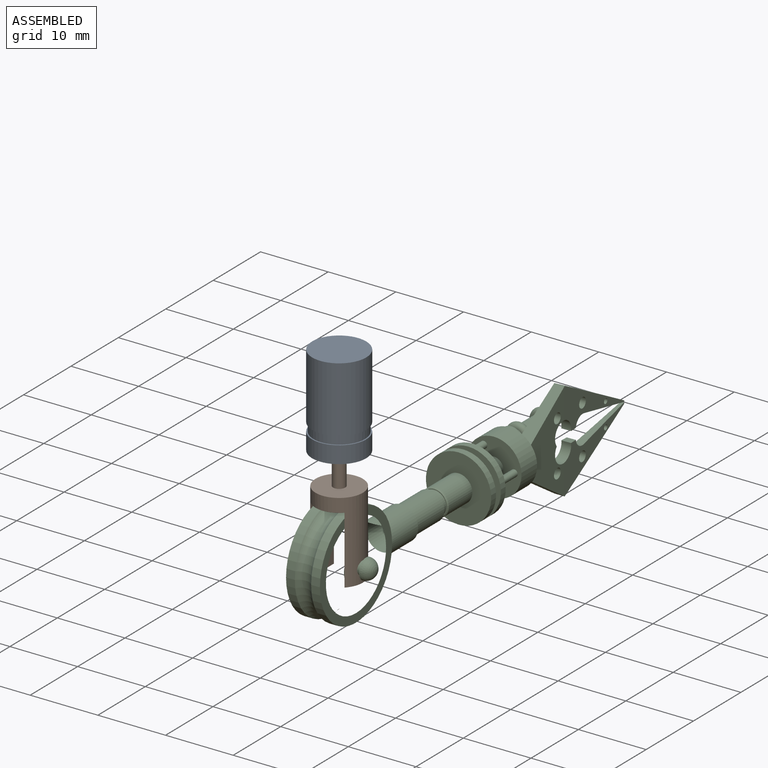
[diagram: assembled view]
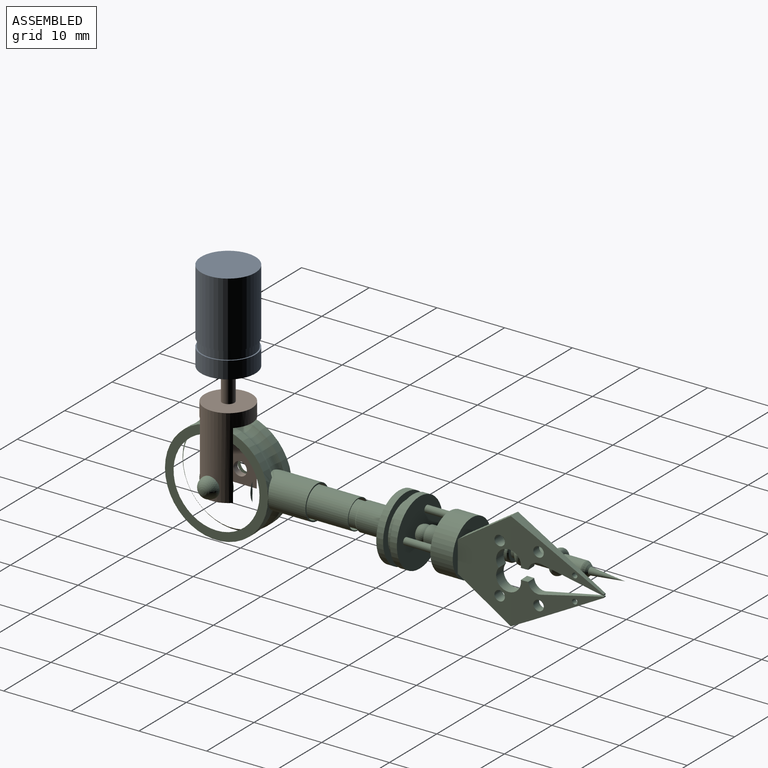
[diagram: assembled view, second angle]
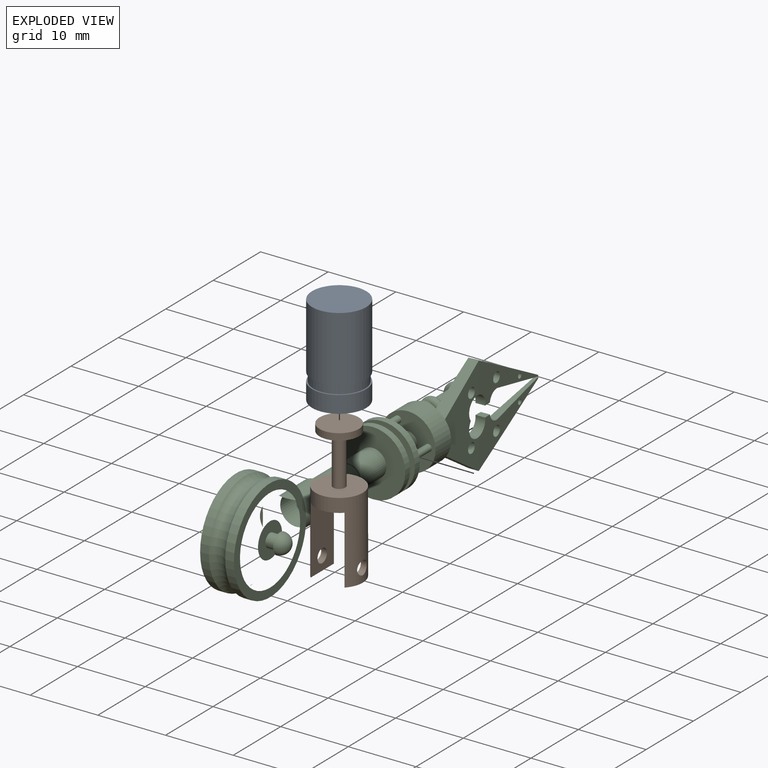
[diagram: exploded view]
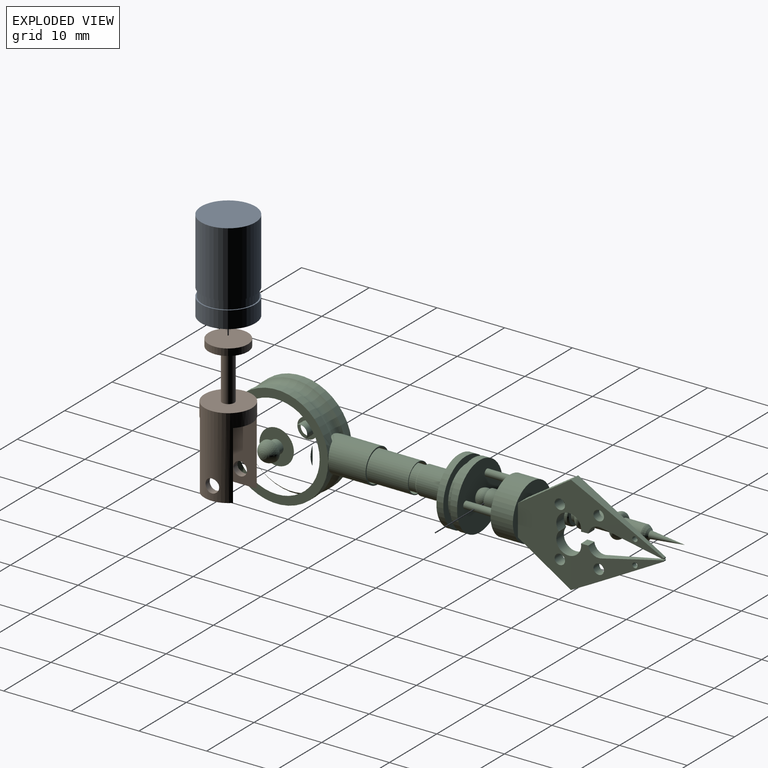
[diagram: exploded view, second angle]
ASSEMBLY  parts=3 mates=2
PART A: 11 faces, bbox 8x8x13.5 mm
  f0: plane 8x8mm, normal (0,0,1), area 50.3mm2, adj f1
  f1: cylinder r=4mm len=9.69mm, axis (0,0,1), area 243.4mm2, adj f0,f2
  f2: plane 8x8mm, normal (0,0,-1), area 4.6mm2, adj f1,f3
  f3: cylinder r=3.81mm len=7.62mm, axis (0,0,1), area 30.2mm2, adj f2,f4
  f4: plane 8x8mm, normal (0,0,1), area 4.6mm2, adj f3,f5
  f5: cylinder r=4mm len=8mm, axis (0,0,1), area 63.3mm2, adj f4,f6
  f6: plane 8x8mm, normal (0,0,-1), area 47.5mm2, adj f5,f7
  f7: cylinder r=0.94mm len=1.89mm, axis (0,0,1), area 5.9mm2, adj f6,f8
  f8: plane 6x6mm, normal (0,0,1), area 25.5mm2, adj f7,f9
  f9: cylinder r=3mm len=11.47mm, axis (0,0,1), area 216.1mm2, adj f8,f10
  f10: plane 6x6mm, normal (0,0,-1), area 28.3mm2, adj f9
PART B: 13 faces, bbox 7x7x20.4 mm
  f0: plane 4.9x1mm, normal (0,0,-1), area 3.4mm2, adj f5,f8
  f1: plane 5.8x5.8mm, normal (0,0,-1), area 23.9mm2, adj f2,f4
  f2: cylinder r=0.9mm len=7.37mm, axis (0,0,1), area 41.7mm2, adj f1,f7
  f3: plane 5.8x5.8mm, normal (0,0,1), area 26.4mm2, adj f4
  f4: cylinder r=2.9mm len=5.8mm, axis (0,0,1), area 18.2mm2, adj f1,f3
  f5: cylinder r=3.5mm len=12mm, axis (0,0,1), area 146.2mm2, adj f0,f6,f7,f8,f9,f10,f11,f12
  f6: plane 4.9x1mm, normal (0,0,-1), area 3.4mm2, adj f5,f9
  f7: plane 7x7mm, normal (0,0,1), area 35.9mm2, adj f2,f5
  f8: plane 10x4.9mm, normal (1,0,0), area 45.8mm2, adj f0,f5,f10,f12
  f9: plane 10x4.9mm, normal (-1,0,0), area 45.8mm2, adj f5,f6,f10,f11
  f10: plane 7x5mm, normal (0,0,-1), area 31.7mm2, adj f5,f8,f9
  f11: cylinder r=1mm len=2mm, axis (1,0,0), area 5.8mm2, adj f5,f9
  f12: cylinder r=1mm len=2mm, axis (1,0,0), area 5.8mm2, adj f5,f8
PART C: 92 faces, bbox 11x66.3x18.5 mm
  f0: plane 14.75x7.67mm, normal (-1,0.03,0), area 59.8mm2, adj f1,f2,f3,f4,f5,f6,f7,f8
  f1: cylinder r=0.75mm len=1.72mm, axis (1,0.03,0), area 7.7mm2, adj f0,f10
  f2: extruded ~3.63x2.85mm, area 10.9mm2, adj f0,f3,f8,f10,f11,f12
  f3: plane 13.36x7.36mm, normal (-1,0.04,0), area 31.6mm2, adj f0,f2,f11,f13,f14,f15,f16,f17
  f4: plane 7.67x5.09mm, normal (0,-0.55,-0.83), area 16.2mm2, adj f0,f5,f10,f20
  f5: plane 8.13x8.13mm, normal (0,1,0), area 38.6mm2, adj f0,f4,f6,f10,f21,f22
  f6: plane 7.67x5.09mm, normal (0,-0.55,0.83), area 16.2mm2, adj f0,f5,f10,f23
  f7: plane 13.36x7.36mm, normal (-1,0.04,0), area 31.6mm2, adj f0,f8,f24,f25,f26,f27,f28,f29
  f8: extruded ~3.63x2.85mm, area 10.9mm2, adj f0,f2,f7,f10,f30,f32
  f9: cylinder r=0.75mm len=1.72mm, axis (1,0.03,0), area 7.7mm2, adj f0,f10
  f10: plane 14.75x7.67mm, normal (1,0.03,0), area 60.1mm2, adj f1,f2,f4,f5,f6,f8,f9,f12
  f11: plane 1.41x1.11mm, normal (0,0,1), area 1.5mm2, adj f2,f3,f12,f17
  f12: plane 13.35x7.33mm, normal (1,0.04,0), area 31.7mm2, adj f2,f10,f11,f13,f14,f15,f16,f17
  f13: cylinder r=0.38mm len=0.84mm, axis (1,0.03,0), area 1.8mm2, adj f3,f12
  f14: cylinder r=0.75mm len=1.54mm, axis (1,0.03,0), area 5.7mm2, adj f3,f12
  f15: plane 0.45x0.17mm, normal (-0.03,1,0), area 0.1mm2, adj f3,f12,f16,f19
  f16: cylinder r=1465.67mm len=13.34mm, axis (1,0.03,0), area 12.3mm2, adj f3,f12,f15,f20
  f17: cylinder r=1.51mm len=1.86mm, axis (1,0.03,0), area 3.1mm2, adj f3,f11,f12,f18
  f18: plane 8.72x1.94mm, normal (0.01,-0.22,0.98), area 7.4mm2, adj f3,f12,f17,f19
  f19: plane 0.48x0.34mm, normal (0,-0.15,0.99), area 0.2mm2, adj f3,f12,f15,f18
  f20: plane 2.89x1.52mm, normal (0,0.46,-0.89), area 2.6mm2, adj f4,f12,f16
  f21: cylinder r=1.14mm len=2.29mm, axis (0,-1,0), area 4.6mm2, adj f5,f33
  f22: cylinder r=4.06mm len=8.13mm, axis (0,1,0), area 84.3mm2, adj f5,f34
  f23: plane 2.89x1.52mm, normal (0,0.46,0.89), area 2.6mm2, adj f6,f25,f32
  f24: cylinder r=0.38mm len=0.84mm, axis (1,0.03,0), area 1.8mm2, adj f7,f32
  f25: cylinder r=1465.67mm len=13.34mm, axis (1,0.03,0), area 12.3mm2, adj f7,f23,f26,f32
  f26: plane 0.45x0.17mm, normal (-0.03,1,0), area 0.1mm2, adj f7,f25,f27,f32
  f27: plane 0.48x0.34mm, normal (0,-0.15,-0.99), area 0.2mm2, adj f7,f26,f28,f32
  f28: plane 8.72x1.94mm, normal (0.01,-0.22,-0.98), area 7.4mm2, adj f7,f27,f29,f32
  f29: cylinder r=1.51mm len=1.86mm, axis (1,0.03,0), area 3.1mm2, adj f7,f28,f30,f32
  f30: plane 1.41x1.11mm, normal (0,0,-1), area 1.5mm2, adj f7,f8,f29,f32
  f31: cylinder r=0.75mm len=1.54mm, axis (1,0.03,0), area 5.7mm2, adj f7,f32
  f32: plane 13.34x7.32mm, normal (1,0.04,0), area 31.7mm2, adj f8,f10,f23,f24,f25,f26,f27,f28
  f33: torus R=1.14mm, axis (0,-1,0), area 19.4mm2, adj f21,f35
  f34: plane 8.13x8.13mm, normal (0,-1,0), area 43.3mm2, adj f22,f36,f37,f38,f39
  f35: cylinder r=1.14mm len=2.29mm, axis (0,-1,0), area 0.9mm2, adj f33,f40
  f36: cylinder r=0.51mm len=4.42mm, axis (0,1,0), area 14.1mm2, adj f34,f41
  f37: cylinder r=0.51mm len=4.42mm, axis (0,1,0), area 14.1mm2, adj f34,f41
  f38: cylinder r=0.51mm len=4.42mm, axis (0,1,0), area 14.1mm2, adj f34,f41
  f39: cylinder r=1.4mm len=2.92mm, axis (0,1,0), area 25.6mm2, adj f34,f42
  f40: plane 3.04x3.04mm, normal (0,-1,0), area 3.2mm2, adj f35,f43
  f41: plane 9.65x9.65mm, normal (0,1,0), area 67.6mm2, adj f36,f37,f38,f44,f45
  f42: plane 2.79x2.79mm, normal (0,-1,0), area 3mm2, adj f39,f44
  f43: torus R=1.52mm, axis (0,-1,0), area 4.2mm2, adj f40,f46
  f44: sphere r=1.25mm, area 11.8mm2, adj f41,f42
  f45: cylinder r=4.83mm len=9.65mm, axis (0,1,0), area 30.8mm2, adj f41,f47
  f46: cylinder r=1.78mm len=3.56mm, axis (0,-1,0), area 22.7mm2, adj f43,f48
  f47: plane 9.65x9.65mm, normal (0,-1,0), area 27.6mm2, adj f45,f49
  f48: torus R=1.52mm, axis (0,-1,0), area 4.2mm2, adj f46,f50
  f49: cylinder r=3.81mm len=7.62mm, axis (0,1,0), area 24.3mm2, adj f47,f51
  f50: plane 3.04x3.04mm, normal (0,1,0), area 3.2mm2, adj f48,f52
  f51: plane 9.65x9.65mm, normal (0,1,0), area 27.6mm2, adj f49,f53
  f52: cylinder r=1.14mm len=2.29mm, axis (0,-1,0), area 4.6mm2, adj f50,f54
  f53: cylinder r=4.83mm len=9.65mm, axis (0,1,0), area 30.8mm2, adj f51,f55
  f54: torus R=1.14mm, axis (0,-1,0), area 19.4mm2, adj f52,f56
  f55: plane 9.65x9.65mm, normal (0,-1,0), area 60.2mm2, adj f53,f57
  f56: cylinder r=1.14mm len=3.81mm, axis (0,-1,0), area 27.4mm2, adj f54,f58
  f57: cylinder r=2.03mm len=4.96mm, axis (0,1,0), area 63.4mm2, adj f55,f59
  f58: torus R=1.14mm, axis (0,-1,0), area 19.4mm2, adj f56,f60
  f59: cone r=2.03mm half-angle=35.2deg, axis (0,1,0), area 2.7mm2, adj f57,f61
  f60: cylinder r=1.14mm len=3.26mm, axis (0,-1,0), area 23.4mm2, adj f58,f62
  f61: plane 3.81x3.81mm, normal (0,-1,0), area 1.5mm2, adj f59,f63
  f62: revolved ~2.29x2.29mm, area 5.4mm2, adj f60,f64
  f63: cylinder r=1.78mm len=6mm, axis (0,1,0), area 67mm2, adj f61,f65
  f64: cone r=0mm half-angle=6deg, axis (0,-1,0), area 8.6mm2, adj f62
  f65: plane 4.06x4.06mm, normal (0,1,0), area 3mm2, adj f63,f66
  f66: cylinder r=2.03mm len=5.08mm, axis (0,1,0), area 64.9mm2, adj f65,f67
  f67: plane 4.32x4.32mm, normal (0,1,0), area 1.7mm2, adj f66,f68
  f68: cylinder r=2.16mm len=10.16mm, axis (0,1,0), area 137.8mm2, adj f67,f69
  f69: plane 4.6x4.6mm, normal (0,1,0), area 2mm2, adj f68,f70
  f70: cylinder r=2.3mm len=4.6mm, axis (0,1,0), area 59.7mm2, adj f69,f71
  f71: plane 5x5mm, normal (0,1,0), area 3mm2, adj f70,f72
  f72: cylinder r=2.5mm len=6.57mm, axis (0,-1,0), area 92mm2, adj f71,f73,f74,f75
  f73: cylinder r=7.62mm len=15.24mm, axis (1,0,0), area 58.1mm2, adj f72,f74,f76
  f74: torus R=8.52mm, axis (1,0,0), area 112.8mm2, adj f72,f73,f75
  f75: cylinder r=7.62mm len=15.24mm, axis (1,0,0), area 58.1mm2, adj f72,f74,f77
  f76: plane 15.24x15.24mm, normal (-1,0,0), area 55.7mm2, adj f73,f78
  f77: plane 15.24x15.24mm, normal (1,0,0), area 55.7mm2, adj f75,f79
  f78: torus R=4.45mm, axis (1,0,0), area 108mm2, adj f76,f80,f81,f82
  f79: torus R=4.45mm, axis (1,0,0), area -113.8mm2, adj f77,f83,f84,f85
  f80: cylinder r=2.5mm len=2.75mm, axis (0,-1,0), area 2.8mm2, adj f78,f81
  f81: plane 2.76x0.44mm, normal (0,-1,0), area 0.8mm2, adj f78,f80
  f82: plane 5.08x5.08mm, normal (-1,0,0), area 17.1mm2, adj f78,f86
  f83: cylinder r=2.5mm len=2.75mm, axis (0,-1,0), area 2.8mm2, adj f79,f84
  f84: plane 2.76x0.44mm, normal (0,1,0), area 0.8mm2, adj f79,f83
  f85: plane 5.08x5.08mm, normal (1,0,0), area 17.1mm2, adj f79,f87
  f86: cylinder r=1mm len=2mm, axis (1,0,0), area 9.4mm2, adj f82,f88
  f87: cylinder r=1mm len=2mm, axis (1,0,0), area 9.4mm2, adj f85,f89
  f88: plane 3x3mm, normal (1,0,0), area 3.9mm2, adj f86,f90
  f89: plane 3x3mm, normal (-1,0,0), area 3.9mm2, adj f87,f91
  f90: sphere r=1.5mm, area 14.1mm2, adj f88
  f91: sphere r=1.5mm, area 14.1mm2, adj f89
PLACE A t=(-161.73,-62.32,-44.23)mm
PLACE B t=(-161.73,-62.32,-45.83)mm
PLACE C t=(-388,-62.32,-121.73)mm
MATE revolute C.f73 <-> B.f11  axis (1,0,0) through (-268.73,-62.32,-107.73)mm
MATE slider B.f2 <-> A.f1  axis (0,0,1) through (-270.73,-62.32,-89.36)mm
